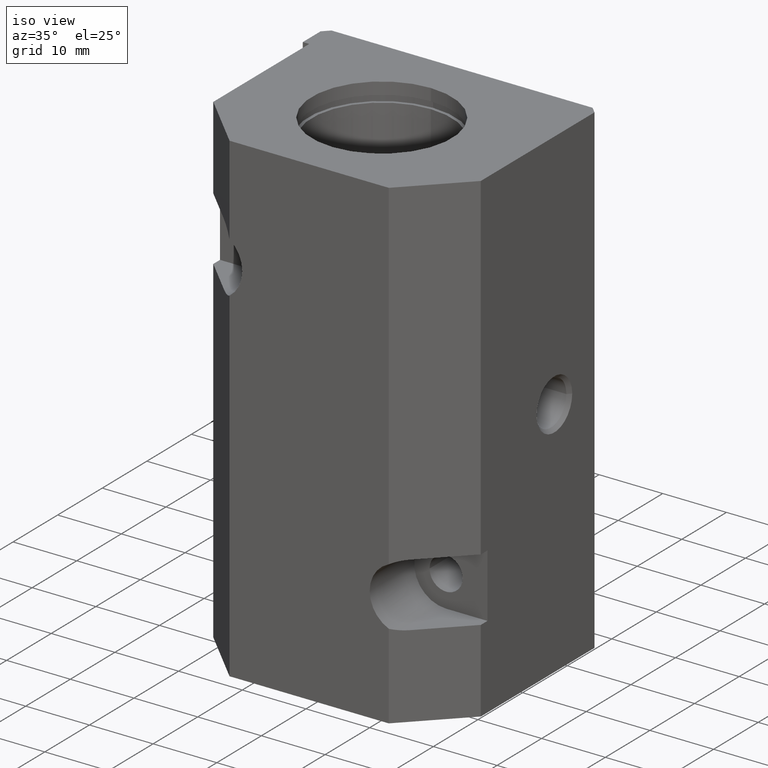
[diagram: clean part render]
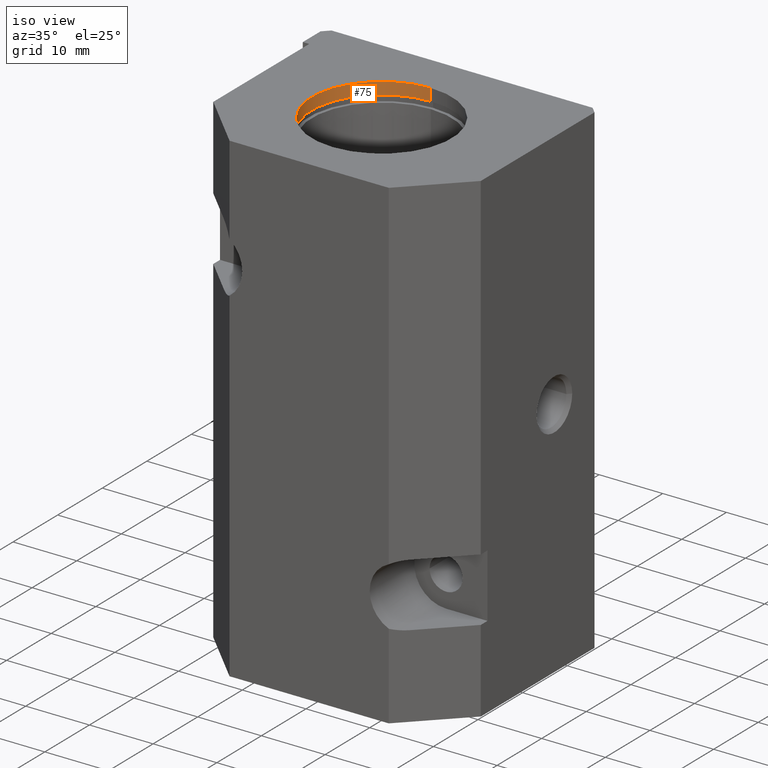
[diagram: same view with one face highlighted and labeled with its STEP entity id]
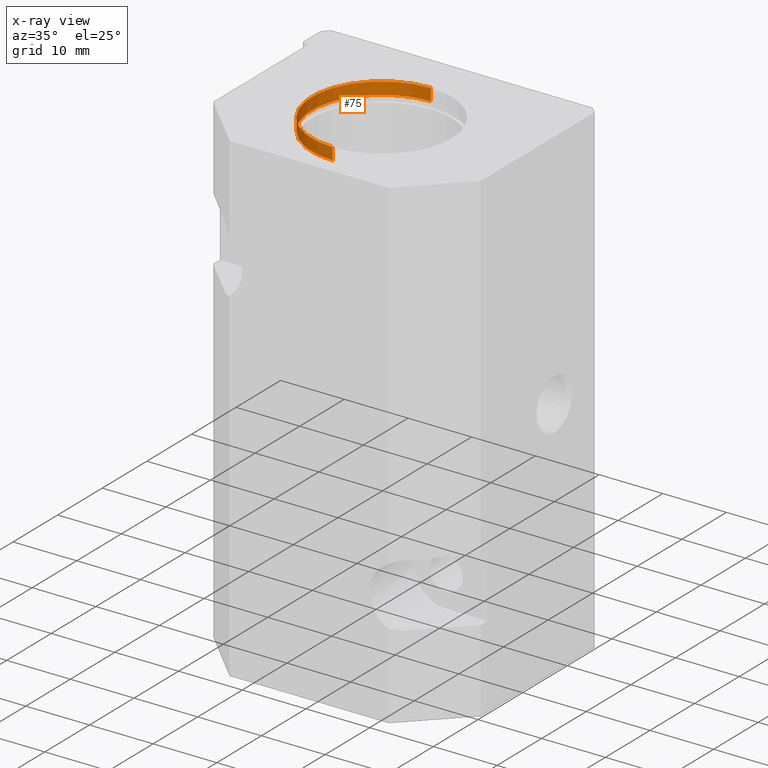
[diagram: x-ray of the same camera — body ghosted, the highlighted face saturated]
A machine part, iso view. The second image highlights one B-rep face of the part: STEP entity #75.
The next image is the same camera in x-ray: the body ghosted, the highlighted face saturated — about 0% of this face is hidden behind the body in this view.
In plain terms, the highlighted cylindrical surface (partial cylindrical patch) has radius 11 mm, axis along (-0, -0, -1).
Its self-contained STEP definition (entity closure, byte-faithful):
#75 = ADVANCED_FACE( '', ( #139 ), #140, .F. );
#139 = FACE_OUTER_BOUND( '', #282, .T. );
#140 = CYLINDRICAL_SURFACE( '', #283, 11.0000000000000 );
#282 = EDGE_LOOP( '', ( #425, #426, #427, #428 ) );
#283 = AXIS2_PLACEMENT_3D( '', #429, #430, #431 );
#425 = ORIENTED_EDGE( '', *, *, #914, .F. );
#426 = ORIENTED_EDGE( '', *, *, #915, .F. );
#427 = ORIENTED_EDGE( '', *, *, #916, .F. );
#428 = ORIENTED_EDGE( '', *, *, #917, .F. );
#429 = CARTESIAN_POINT( '', ( 0.000000000000000, 17.0000000000000, 75.0500000000000 ) );
#430 = DIRECTION( '', ( -0.000000000000000, -0.000000000000000, -1.00000000000000 ) );
#431 = DIRECTION( '', ( -2.44921270764487E-016, 1.00000000000000, 0.000000000000000 ) );
#914 = EDGE_CURVE( '', #1064, #1065, #1066, .T. );
#915 = EDGE_CURVE( '', #1067, #1064, #1068, .T. );
#916 = EDGE_CURVE( '', #1069, #1067, #1070, .T. );
#917 = EDGE_CURVE( '', #1065, #1069, #1071, .T. );
#1064 = VERTEX_POINT( '', #1312 );
#1065 = VERTEX_POINT( '', #1313 );
#1066 = LINE( '', #1314, #1315 );
#1067 = VERTEX_POINT( '', #1316 );
#1068 = CIRCLE( '', #1317, 11.0000000000000 );
#1069 = VERTEX_POINT( '', #1318 );
#1070 = LINE( '', #1319, #1320 );
#1071 = CIRCLE( '', #1321, 11.0000000000000 );
#1312 = CARTESIAN_POINT( '', ( -2.69413397840923E-015, 28.0000000000000, 76.0000000000000 ) );
#1313 = CARTESIAN_POINT( '', ( -2.69413397840923E-015, 28.0000000000000, 74.1000000000000 ) );
#1314 = CARTESIAN_POINT( '', ( -1.34706698920474E-015, 28.0000000000000, 75.0500000000000 ) );
#1315 = VECTOR( '', #1686, 1.00000000000000 );
#1316 = CARTESIAN_POINT( '', ( 1.34706698920474E-015, 6.00000000000000, 76.0000000000000 ) );
#1317 = AXIS2_PLACEMENT_3D( '', #1687, #1688, #1689 );
#1318 = CARTESIAN_POINT( '', ( 1.34706698920474E-015, 6.00000000000000, 74.1000000000000 ) );
#1319 = CARTESIAN_POINT( '', ( 1.34706698920474E-015, 6.00000000000000, 75.0500000000000 ) );
#1320 = VECTOR( '', #1690, 1.00000000000000 );
#1321 = AXIS2_PLACEMENT_3D( '', #1691, #1692, #1693 );
#1686 = DIRECTION( '', ( 0.000000000000000, -0.000000000000000, -1.00000000000000 ) );
#1687 = CARTESIAN_POINT( '', ( 0.000000000000000, 17.0000000000000, 76.0000000000000 ) );
#1688 = DIRECTION( '', ( -0.000000000000000, 0.000000000000000, -1.00000000000000 ) );
#1689 = DIRECTION( '', ( -2.44921270764487E-016, 1.00000000000000, 0.000000000000000 ) );
#1690 = DIRECTION( '', ( 0.000000000000000, -0.000000000000000, 1.00000000000000 ) );
#1691 = CARTESIAN_POINT( '', ( 0.000000000000000, 17.0000000000000, 74.1000000000000 ) );
#1692 = DIRECTION( '', ( 0.000000000000000, 0.000000000000000, 1.00000000000000 ) );
#1693 = DIRECTION( '', ( -2.44921270764487E-016, 1.00000000000000, 0.000000000000000 ) );